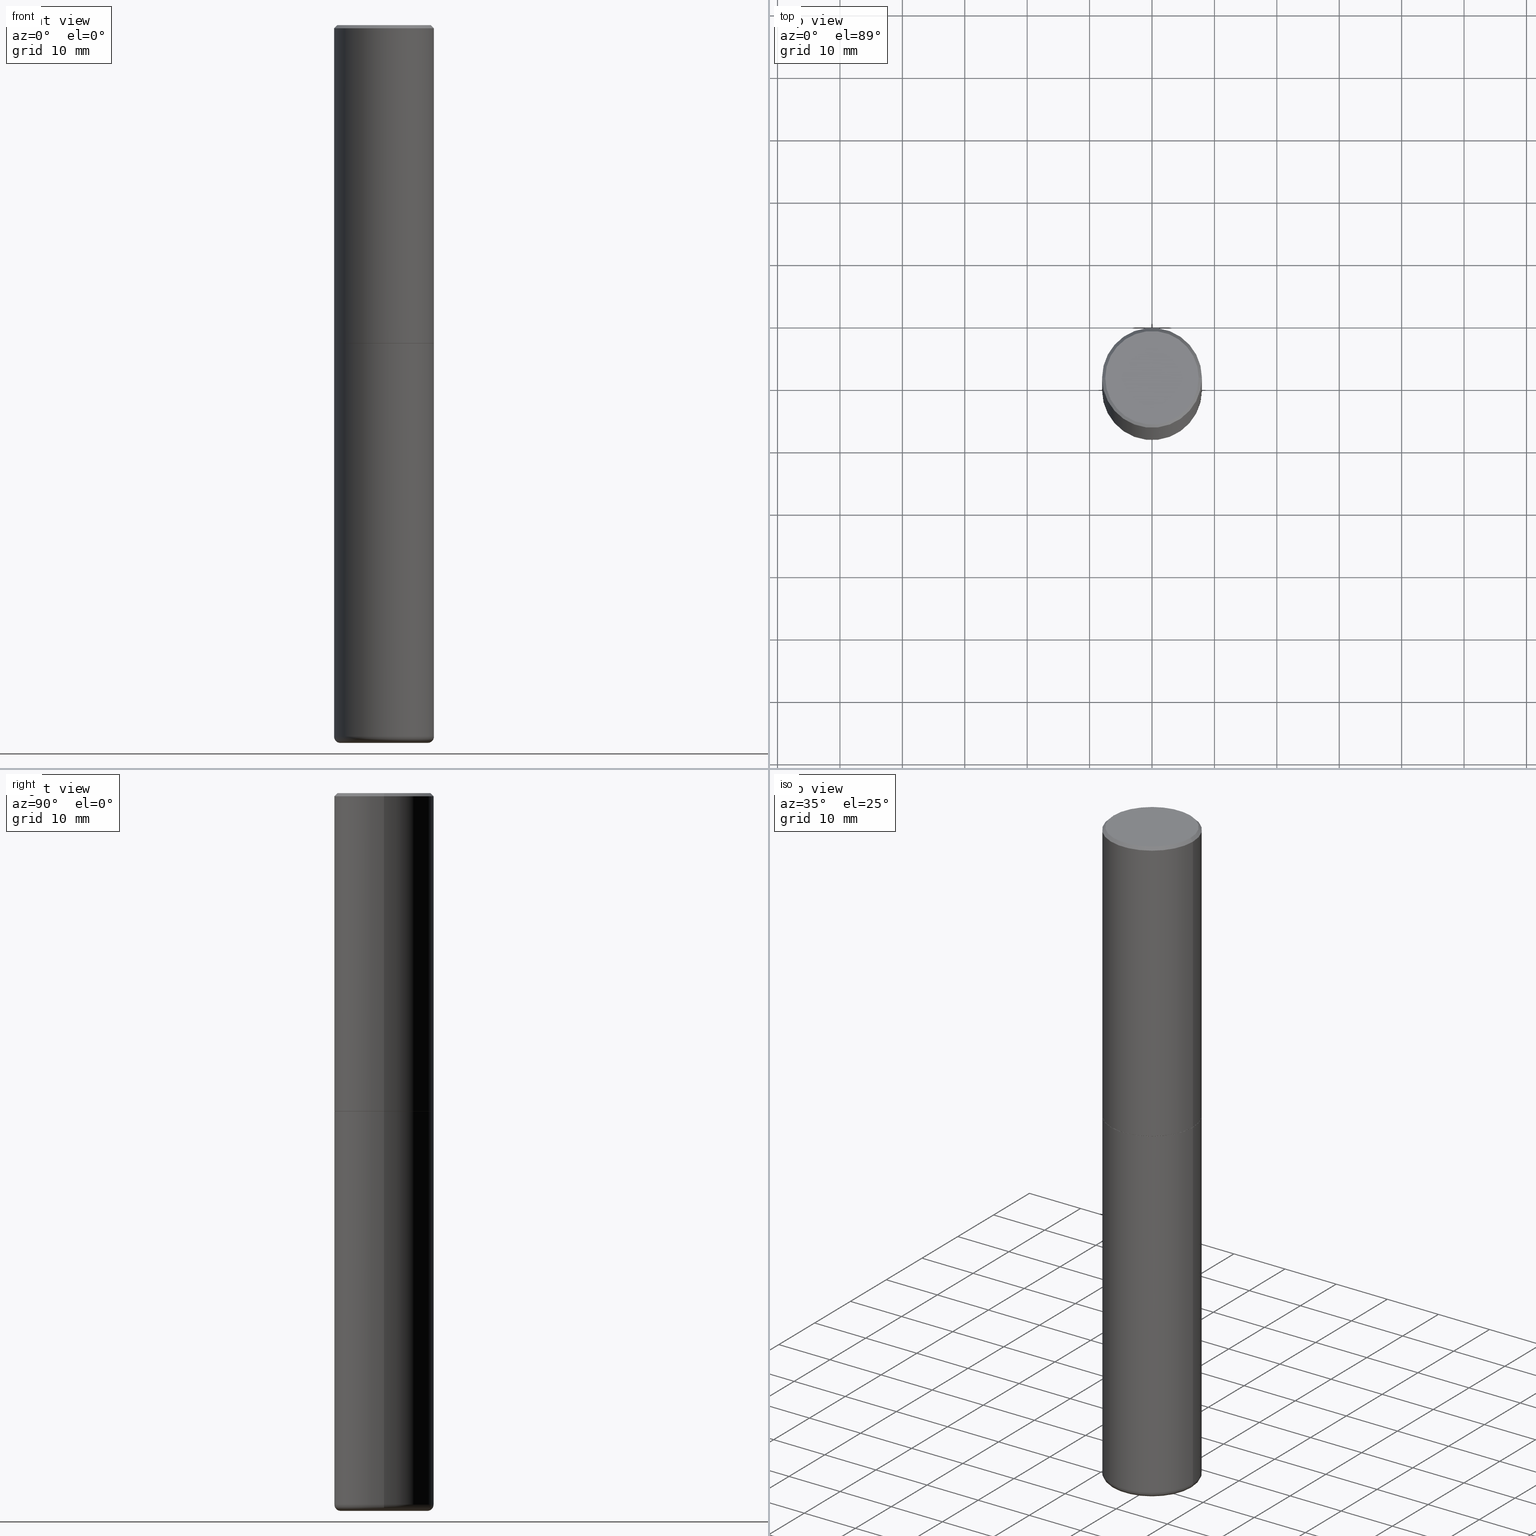
[diagram: canonical four-view strip — front | top / right | iso, engineering-drawing reading convention]
A machine part, canonical four-view strip (front | top / right | iso — engineering-drawing reading convention). The complete STEP part file that produces these views, byte-faithful:
ISO-10303-21;
HEADER;
FILE_DESCRIPTION (( 'STEP AP203' ),
    '1' );
FILE_NAME ('74780.STEP',
    '2024-05-02T19:17:57',
    ( '' ),
    ( '' ),
    'SwSTEP 2.0',
    'SolidWorks 2023',
    '' );
FILE_SCHEMA (( 'CONFIG_CONTROL_DESIGN' ));
ENDSEC;

DATA;
#1 = AXIS2_PLACEMENT_3D ( 'NONE', #334, #270, #20 ) ;
#2 = AXIS2_PLACEMENT_3D ( 'NONE', #32, #36, #152 ) ;
#3 = ORIENTED_EDGE ( 'NONE', *, *, #65, .T. ) ;
#4 = ORIENTED_EDGE ( 'NONE', *, *, #156, .F. ) ;
#5 = CLOSED_SHELL ( 'NONE', ( #328, #30, #109, #308, #198, #368, #324, #153 ) ) ;
#6 =( GEOMETRIC_REPRESENTATION_CONTEXT ( 3 ) GLOBAL_UNCERTAINTY_ASSIGNED_CONTEXT ( ( #377 ) ) GLOBAL_UNIT_ASSIGNED_CONTEXT ( ( #401, #351, #68 ) ) REPRESENTATION_CONTEXT ( 'NONE', 'WORKASPACE' ) );
#7 = EDGE_CURVE ( 'NONE', #359, #339, #26, .T. ) ;
#8 = CARTESIAN_POINT ( 'NONE',  ( 0.000000000000000000, 0.000000000000000000, 0.000000000000000000 ) ) ;
#9 = ORIENTED_EDGE ( 'NONE', *, *, #291, .F. ) ;
#10 = CARTESIAN_POINT ( 'NONE',  ( -0.3149499999999999522, 2.129454468560426178E-15, -0.02000000000000006981 ) ) ;
#11 = EDGE_CURVE ( 'NONE', #158, #89, #416, .T. ) ;
#12 = ORIENTED_EDGE ( 'NONE', *, *, #15, .F. ) ;
#13 = DIRECTION ( 'NONE',  ( 1.000000000000000000, -6.982962677686265922E-15, 4.874125435057325556E-29 ) ) ;
#14 = DIRECTION ( 'NONE',  ( -2.445468806185136597E-29, 3.491481338843145583E-15, 1.000000000000000000 ) ) ;
#15 = EDGE_CURVE ( 'NONE', #366, #396, #18, .T. ) ;
#16 = EDGE_LOOP ( 'NONE', ( #9, #369, #176, #54 ) ) ;
#17 = CARTESIAN_POINT ( 'NONE',  ( 0.2755500000000000171, -1.759462191083225139E-14, -4.488199999999999079 ) ) ;
#18 = CIRCLE ( 'NONE', #1, 0.03939999999999978936 ) ;
#19 = CONICAL_SURFACE ( 'NONE', #107, 0.3139500000000000068, 0.7853981633975507526 ) ;
#20 = DIRECTION ( 'NONE',  ( -1.000000000000000000, 7.105427357601014480E-15, 0.000000000000000000 ) ) ;
#21 = ORIENTED_EDGE ( 'NONE', *, *, #123, .T. ) ;
#22 = FACE_OUTER_BOUND ( 'NONE', #295, .T. ) ;
#23 = DIRECTION ( 'NONE',  ( 1.000000000000000000, -6.982962677686266711E-15, 4.876176775795936353E-29 ) ) ;
#24 = EDGE_LOOP ( 'NONE', ( #254, #357, #373, #268 ) ) ;
#25 = PERSON_AND_ORGANIZATION ( #71, #192 ) ;
#26 = CIRCLE ( 'NONE', #386, 0.3149499999999999522 ) ;
#27 = DIRECTION ( 'NONE',  ( 1.000000000000000000, -6.982962677686266711E-15, 0.000000000000000000 ) ) ;
#28 = APPROVAL_PERSON_ORGANIZATION ( #378, #122, #414 ) ;
#29 = COORDINATED_UNIVERSAL_TIME_OFFSET ( 5, 0, .BEHIND. ) ;
#30 = ADVANCED_FACE ( 'NONE', ( #365 ), #266, .T. ) ;
#31 = APPROVAL_DATE_TIME ( #215, #364 ) ;
#32 = CARTESIAN_POINT ( 'NONE',  ( 0.000000000000000000, 0.000000000000000000, 0.000000000000000000 ) ) ;
#33 = EDGE_CURVE ( 'NONE', #89, #158, #320, .T. ) ;
#34 = VECTOR ( 'NONE', #242, 39.37007874015748143 ) ;
#35 = PRODUCT_DEFINITION_FORMATION_WITH_SPECIFIED_SOURCE ( 'ANY', '', #409, .NOT_KNOWN. ) ;
#36 = DIRECTION ( 'NONE',  ( 0.000000000000000000, 0.000000000000000000, 1.000000000000000000 ) ) ;
#37 = CC_DESIGN_PERSON_AND_ORGANIZATION_ASSIGNMENT ( #247, #98, ( #409 ) ) ;
#38 = ORIENTED_EDGE ( 'NONE', *, *, #73, .F. ) ;
#39 = AXIS2_PLACEMENT_3D ( 'NONE', #17, #209, #344 ) ;
#40 = ORIENTED_EDGE ( 'NONE', *, *, #156, .T. ) ;
#41 = FACE_OUTER_BOUND ( 'NONE', #16, .T. ) ;
#42 = ORIENTED_EDGE ( 'NONE', *, *, #128, .F. ) ;
#43 = CIRCLE ( 'NONE', #371, 0.3149500000000000077 ) ;
#44 = APPROVAL_PERSON_ORGANIZATION ( #92, #335, #383 ) ;
#45 = DIRECTION ( 'NONE',  ( -2.445468806185136597E-29, 3.491481338843145583E-15, 1.000000000000000000 ) ) ;
#46 = EDGE_CURVE ( 'NONE', #332, #75, #130, .T. ) ;
#47 = DIRECTION ( 'NONE',  ( 1.000000000000000000, -6.982962677686267499E-15, 0.000000000000000000 ) ) ;
#48 = EDGE_LOOP ( 'NONE', ( #202, #262, #129, #127 ) ) ;
#49 = FACE_OUTER_BOUND ( 'NONE', #290, .T. ) ;
#50 = FACE_OUTER_BOUND ( 'NONE', #169, .T. ) ;
#51 = CIRCLE ( 'NONE', #79, 0.3149500000000000077 ) ;
#52 = AXIS2_PLACEMENT_3D ( 'NONE', #140, #86, #81 ) ;
#53 = CARTESIAN_POINT ( 'NONE',  ( 4.910256815939135870E-29, -7.010545380263151710E-15, -2.007899999999999796 ) ) ;
#54 = ORIENTED_EDGE ( 'NONE', *, *, #154, .F. ) ;
#55 = CARTESIAN_POINT ( 'NONE',  ( -0.3149500000000000077, -9.102651616353041816E-15, -2.007899999999999796 ) ) ;
#56 = DIRECTION ( 'NONE',  ( 1.000000000000000000, -6.982962677686268288E-15, 0.000000000000000000 ) ) ;
#57 = ORIENTED_EDGE ( 'NONE', *, *, #58, .F. ) ;
#58 = EDGE_CURVE ( 'NONE', #326, #287, #222, .T. ) ;
#59 = CARTESIAN_POINT ( 'NONE',  ( 2.059624841783562486E-15, 0.2949499999999997679, -9.380394023546260134E-16 ) ) ;
#60 = PERSON_AND_ORGANIZATION ( #71, #192 ) ;
#61 = VECTOR ( 'NONE', #97, 39.37007874015748143 ) ;
#62 = CARTESIAN_POINT ( 'NONE',  ( 0.3149500000000000077, -2.199284095337289871E-15, 1.535751875536930130E-29 ) ) ;
#63 = APPROVAL_STATUS ( 'not_yet_approved' ) ;
#64 = DIRECTION ( 'NONE',  ( -2.445468806185136597E-29, 3.491481338843145583E-15, 1.000000000000000000 ) ) ;
#65 = EDGE_CURVE ( 'NONE', #158, #359, #296, .T. ) ;
#66 = PERSON_AND_ORGANIZATION_ROLE ( 'classification_officer' ) ;
#67 = PLANE ( 'NONE',  #101 ) ;
#68 =( NAMED_UNIT ( * ) SI_UNIT ( $, .STERADIAN. ) SOLID_ANGLE_UNIT ( ) );
#69 = CC_DESIGN_DATE_AND_TIME_ASSIGNMENT ( #212, #250, ( #77 ) ) ;
#70 = CIRCLE ( 'NONE', #294, 0.3149500000000000077 ) ;
#71 = PERSON ( 'UNSPECIFIED', 'UNSPECIFIED', 'UNSPECIFIED', ('UNSPECIFIED'), ('UNSPECIFIED'), ('UNSPECIFIED') ) ;
#72 = ORIENTED_EDGE ( 'NONE', *, *, #394, .T. ) ;
#73 = EDGE_CURVE ( 'NONE', #396, #287, #338, .T. ) ;
#74 = CC_DESIGN_APPROVAL ( #122, ( #279 ) ) ;
#75 = VERTEX_POINT ( 'NONE', #395 ) ;
#76 = ORIENTED_EDGE ( 'NONE', *, *, #283, .F. ) ;
#77 = PRODUCT_DEFINITION ( 'UNKNOWN', '', #35, #237 ) ;
#78 = PLANE ( 'NONE',  #124 ) ;
#79 = AXIS2_PLACEMENT_3D ( 'NONE', #119, #64, #211 ) ;
#80 = AXIS2_PLACEMENT_3D ( 'NONE', #53, #172, #189 ) ;
#81 = DIRECTION ( 'NONE',  ( 1.000000000000000000, -6.982962677686261977E-15, 4.883557194083111219E-29 ) ) ;
#82 = DIRECTION ( 'NONE',  ( -2.445468806185136597E-29, 3.491481338843145583E-15, 1.000000000000000000 ) ) ;
#83 = DIRECTION ( 'NONE',  ( 2.438088387897960049E-29, -3.491481338843145188E-15, -1.000000000000000000 ) ) ;
#84 = DIRECTION ( 'NONE',  ( -2.445468806185136597E-29, 3.491481338843145583E-15, 1.000000000000000000 ) ) ;
#85 = VERTEX_POINT ( 'NONE', #226 ) ;
#86 = DIRECTION ( 'NONE',  ( -2.445468806185136597E-29, 3.491481338843145583E-15, 1.000000000000000000 ) ) ;
#87 = CARTESIAN_POINT ( 'NONE',  ( 0.3149499999999998967, -1.786975064033308982E-14, -4.488199999999999079 ) ) ;
#88 = EDGE_CURVE ( 'NONE', #75, #339, #132, .T. ) ;
#89 = VERTEX_POINT ( 'NONE', #195 ) ;
#90 = CARTESIAN_POINT ( 'NONE',  ( 4.910256815939135870E-29, -7.010545380263151710E-15, -2.007899999999999796 ) ) ;
#91 = APPROVAL_DATE_TIME ( #147, #335 ) ;
#92 = PERSON_AND_ORGANIZATION ( #71, #192 ) ;
#93 = ADVANCED_FACE ( 'NONE', ( #273 ), #408, .T. ) ;
#94 = AXIS2_PLACEMENT_3D ( 'NONE', #8, #82, #403 ) ;
#95 = DIRECTION ( 'NONE',  ( -2.445468806185136597E-29, 3.491481338843145583E-15, 1.000000000000000000 ) ) ;
#96 = SHAPE_DEFINITION_REPRESENTATION ( #260, #288 ) ;
#97 = DIRECTION ( 'NONE',  ( 0.7071067811866199593, -2.468850131083015945E-15, 0.7071067811864750752 ) ) ;
#98 = PERSON_AND_ORGANIZATION_ROLE ( 'design_owner' ) ;
#99 = CIRCLE ( 'NONE', #160, 0.2755500000000000171 ) ;
#100 = ADVANCED_FACE ( 'NONE', ( #22 ), #136, .T. ) ;
#101 = AXIS2_PLACEMENT_3D ( 'NONE', #59, #350, #184 ) ;
#102 = APPROVAL_PERSON_ORGANIZATION ( #177, #364, #349 ) ;
#103 = EDGE_LOOP ( 'NONE', ( #111, #3, #162, #387 ) ) ;
#104 = ORIENTED_EDGE ( 'NONE', *, *, #46, .T. ) ;
#105 = CARTESIAN_POINT ( 'NONE',  ( 0.000000000000000000, 0.000000000000000000, 0.000000000000000000 ) ) ;
#106 = CONICAL_SURFACE ( 'NONE', #347, 0.3139500000000000068, 0.7853981633975507526 ) ;
#107 = AXIS2_PLACEMENT_3D ( 'NONE', #404, #239, #197 ) ;
#108 = DIRECTION ( 'NONE',  ( 2.438088387897960049E-29, -3.491481338843145188E-15, -1.000000000000000000 ) ) ;
#109 = ADVANCED_FACE ( 'NONE', ( #41 ), #205, .T. ) ;
#110 = DIRECTION ( 'NONE',  ( 0.7071067811865465735, -7.319954787623252890E-15, -0.7071067811865484609 ) ) ;
#111 = ORIENTED_EDGE ( 'NONE', *, *, #33, .T. ) ;
#112 = CARTESIAN_POINT ( 'NONE',  ( -4.488561081641444621E-45, 6.408475632635922878E-31, 1.835460370743176819E-16 ) ) ;
#113 = EDGE_CURVE ( 'NONE', #114, #85, #248, .T. ) ;
#114 = VERTEX_POINT ( 'NONE', #372 ) ;
#115 = CYLINDRICAL_SURFACE ( 'NONE', #186, 0.3149500000000000077 ) ;
#116 = AXIS2_PLACEMENT_3D ( 'NONE', #112, #297, #13 ) ;
#117 = COORDINATED_UNIVERSAL_TIME_OFFSET ( 5, 0, .BEHIND. ) ;
#118 = DIRECTION ( 'NONE',  ( -2.445468806185136597E-29, 3.491481338843145583E-15, 1.000000000000000000 ) ) ;
#119 = CARTESIAN_POINT ( 'NONE',  ( 1.097575309592012950E-28, -1.567046654499580152E-14, -4.488199999999999079 ) ) ;
#120 = CARTESIAN_POINT ( 'NONE',  ( 0.000000000000000000, 0.000000000000000000, 0.000000000000000000 ) ) ;
#121 = CALENDAR_DATE ( 2024, 2, 5 ) ;
#122 = APPROVAL ( #281, 'UNSPECIFIED' ) ;
#123 = EDGE_CURVE ( 'NONE', #221, #396, #51, .T. ) ;
#124 = AXIS2_PLACEMENT_3D ( 'NONE', #234, #174, #370 ) ;
#125 = VECTOR ( 'NONE', #384, 39.37007874015748143 ) ;
#126 = ORIENTED_EDGE ( 'NONE', *, *, #131, .F. ) ;
#127 = ORIENTED_EDGE ( 'NONE', *, *, #11, .F. ) ;
#128 = EDGE_CURVE ( 'NONE', #221, #326, #181, .T. ) ;
#129 = ORIENTED_EDGE ( 'NONE', *, *, #137, .T. ) ;
#130 = CIRCLE ( 'NONE', #228, 0.2949499999999997679 ) ;
#131 = EDGE_CURVE ( 'NONE', #366, #325, #99, .T. ) ;
#132 = LINE ( 'NONE', #302, #402 ) ;
#133 = PLANE ( 'NONE',  #191 ) ;
#134 = EDGE_LOOP ( 'NONE', ( #104, #238 ) ) ;
#135 = CARTESIAN_POINT ( 'NONE',  ( 0.2755500000000000171, -1.773218627558267376E-14, -4.527599999999998737 ) ) ;
#136 = TOROIDAL_SURFACE ( 'NONE', #353, 0.2755500000000000171, 0.03939999999999978936 ) ;
#137 = EDGE_CURVE ( 'NONE', #85, #89, #382, .T. ) ;
#138 = DIRECTION ( 'NONE',  ( 1.000000000000000000, -6.982962677686267499E-15, 0.000000000000000000 ) ) ;
#139 = EDGE_LOOP ( 'NONE', ( #40, #72, #208, #299 ) ) ;
#140 = CARTESIAN_POINT ( 'NONE',  ( 1.097575309592012950E-28, -1.567046654499580152E-14, -4.488199999999999079 ) ) ;
#141 = CARTESIAN_POINT ( 'NONE',  ( 0.000000000000000000, 0.000000000000000000, 0.000000000000000000 ) ) ;
#142 = DIRECTION ( 'NONE',  ( -2.445468806185136597E-29, 3.491481338843145583E-15, 1.000000000000000000 ) ) ;
#143 = FACE_OUTER_BOUND ( 'NONE', #48, .T. ) ;
#144 = DIRECTION ( 'NONE',  ( -0.7071067811865465735, 2.468850131082246805E-15, -0.7071067811865484609 ) ) ;
#145 = PERSON_AND_ORGANIZATION_ROLE ( 'design_supplier' ) ;
#146 = LOCAL_TIME ( 15, 17, 57.00000000000000000, #29 ) ;
#147 = DATE_AND_TIME ( #313, #161 ) ;
#148 = CARTESIAN_POINT ( 'NONE',  ( 1.107210456688382074E-28, -1.580803090974622074E-14, -4.527599999999998737 ) ) ;
#149 = MECHANICAL_CONTEXT ( 'NONE', #292, 'mechanical' ) ;
#150 = CIRCLE ( 'NONE', #252, 0.2755500000000000171 ) ;
#151 = DIRECTION ( 'NONE',  ( 1.000000000000000000, -6.982962677686266711E-15, 0.000000000000000000 ) ) ;
#152 = DIRECTION ( 'NONE',  ( 1.000000000000000000, 0.000000000000000000, 0.000000000000000000 ) ) ;
#153 = ADVANCED_FACE ( 'NONE', ( #415 ), #67, .F. ) ;
#154 = EDGE_CURVE ( 'NONE', #332, #359, #175, .T. ) ;
#155 = ORIENTED_EDGE ( 'NONE', *, *, #283, .T. ) ;
#156 = EDGE_CURVE ( 'NONE', #85, #114, #240, .T. ) ;
#157 = ORIENTED_EDGE ( 'NONE', *, *, #224, .F. ) ;
#158 = VERTEX_POINT ( 'NONE', #413 ) ;
#159 = CARTESIAN_POINT ( 'NONE',  ( 4.907811347132950267E-29, -7.007053898924307914E-15, -2.006899999999999906 ) ) ;
#160 = AXIS2_PLACEMENT_3D ( 'NONE', #245, #341, #56 ) ;
#161 = LOCAL_TIME ( 15, 17, 57.00000000000000000, #411 ) ;
#162 = ORIENTED_EDGE ( 'NONE', *, *, #385, .F. ) ;
#163 = DIRECTION ( 'NONE',  ( 1.000000000000000000, -6.982962677686266711E-15, 0.000000000000000000 ) ) ;
#164 = DIRECTION ( 'NONE',  ( -2.445468806185136877E-29, 3.491481338843145188E-15, 1.000000000000000000 ) ) ;
#165 = FACE_OUTER_BOUND ( 'NONE', #188, .T. ) ;
#166 = CARTESIAN_POINT ( 'NONE',  ( 4.910256815939135870E-29, -7.010545380263151710E-15, -2.007899999999999796 ) ) ;
#167 = EDGE_LOOP ( 'NONE', ( #259, #187, #399, #271 ) ) ;
#168 = CARTESIAN_POINT ( 'NONE',  ( 4.890937612370289799E-31, -6.982962677686315028E-17, -0.02000000000000006981 ) ) ;
#169 = EDGE_LOOP ( 'NONE', ( #230, #223 ) ) ;
#170 = CARTESIAN_POINT ( 'NONE',  ( 4.910256815939135870E-29, -7.010545380263151710E-15, -2.007899999999999796 ) ) ;
#171 = VECTOR ( 'NONE', #405, 39.37007874015748143 ) ;
#172 = DIRECTION ( 'NONE',  ( -2.445468806185136597E-29, 3.491481338843145583E-15, 1.000000000000000000 ) ) ;
#173 = ORIENTED_EDGE ( 'NONE', *, *, #73, .T. ) ;
#174 = DIRECTION ( 'NONE',  ( -2.438088387897960049E-29, 3.491481338843145188E-15, 1.000000000000000000 ) ) ;
#175 = LINE ( 'NONE', #276, #301 ) ;
#176 = ORIENTED_EDGE ( 'NONE', *, *, #385, .T. ) ;
#177 = PERSON_AND_ORGANIZATION ( #71, #192 ) ;
#178 = DIRECTION ( 'NONE',  ( -1.000000000000000000, 6.982962677686265922E-15, -4.876176775795935793E-29 ) ) ;
#179 = CARTESIAN_POINT ( 'NONE',  ( 4.910256815939135870E-29, -7.010545380263151710E-15, -2.007899999999999796 ) ) ;
#180 = LOCAL_TIME ( 15, 17, 57.00000000000000000, #284 ) ;
#181 = LINE ( 'NONE', #62, #34 ) ;
#182 = COORDINATED_UNIVERSAL_TIME_OFFSET ( 5, 0, .BEHIND. ) ;
#183 = DATE_AND_TIME ( #244, #321 ) ;
#184 = DIRECTION ( 'NONE',  ( -1.000000000000000000, 6.982962677686265922E-15, -4.876176775795935793E-29 ) ) ;
#185 = AXIS2_PLACEMENT_3D ( 'NONE', #159, #190, #138 ) ;
#186 = AXIS2_PLACEMENT_3D ( 'NONE', #105, #45, #23 ) ;
#187 = ORIENTED_EDGE ( 'NONE', *, *, #15, .T. ) ;
#188 = EDGE_LOOP ( 'NONE', ( #4, #193 ) ) ;
#189 = DIRECTION ( 'NONE',  ( 1.000000000000000000, -6.982962677686263555E-15, 0.000000000000000000 ) ) ;
#190 = DIRECTION ( 'NONE',  ( -2.445468806185136597E-29, 3.491481338843145583E-15, 1.000000000000000000 ) ) ;
#191 = AXIS2_PLACEMENT_3D ( 'NONE', #170, #83, #360 ) ;
#192 = ORGANIZATION ( 'UNSPECIFIED', 'UNSPECIFIED', '' ) ;
#193 = ORIENTED_EDGE ( 'NONE', *, *, #113, .F. ) ;
#194 = PRODUCT_RELATED_PRODUCT_CATEGORY ( 'detail', '', ( #409 ) ) ;
#195 = CARTESIAN_POINT ( 'NONE',  ( 0.3149500000000002853, -9.206337994261599363E-15, -2.006899999999999906 ) ) ;
#196 = EDGE_LOOP ( 'NONE', ( #391, #219, #293, #235 ) ) ;
#197 = DIRECTION ( 'NONE',  ( 1.000000000000000000, -6.982962677686266711E-15, 0.000000000000000000 ) ) ;
#198 = ADVANCED_FACE ( 'NONE', ( #319 ), #280, .T. ) ;
#199 = DIRECTION ( 'NONE',  ( 1.000000000000000000, -6.982962677686266711E-15, 4.876176775795936353E-29 ) ) ;
#200 = DIRECTION ( 'NONE',  ( -2.445468806185136597E-29, 3.491481338843145583E-15, 1.000000000000000000 ) ) ;
#201 = CARTESIAN_POINT ( 'NONE',  ( -4.488561081641444621E-45, 6.408475632635922878E-31, 1.835460370743176819E-16 ) ) ;
#202 = ORIENTED_EDGE ( 'NONE', *, *, #394, .F. ) ;
#203 = DIRECTION ( 'NONE',  ( 1.000000000000000000, -6.982962677686269866E-15, 0.000000000000000000 ) ) ;
#204 = CC_DESIGN_PERSON_AND_ORGANIZATION_ASSIGNMENT ( #412, #66, ( #279 ) ) ;
#205 = CONICAL_SURFACE ( 'NONE', #380, 0.3149499999999999522, 0.7853981633974469467 ) ;
#206 = AXIS2_PLACEMENT_3D ( 'NONE', #333, #374, #163 ) ;
#207 = LINE ( 'NONE', #300, #285 ) ;
#208 = ORIENTED_EDGE ( 'NONE', *, *, #33, .F. ) ;
#209 = DIRECTION ( 'NONE',  ( -6.982962677686266711E-15, -1.000000000000000000, 3.491481338843145583E-15 ) ) ;
#210 = PERSON_AND_ORGANIZATION ( #71, #192 ) ;
#211 = DIRECTION ( 'NONE',  ( 1.000000000000000000, -6.982962677686269866E-15, 0.000000000000000000 ) ) ;
#212 = DATE_AND_TIME ( #121, #146 ) ;
#213 = DIRECTION ( 'NONE',  ( 1.000000000000000000, -6.982962677686268288E-15, 0.000000000000000000 ) ) ;
#214 = APPLICATION_PROTOCOL_DEFINITION ( 'international standard', 'config_control_design', 1994, #390 ) ;
#215 = DATE_AND_TIME ( #418, #180 ) ;
#216 = CC_DESIGN_PERSON_AND_ORGANIZATION_ASSIGNMENT ( #25, #145, ( #35 ) ) ;
#217 = AXIS2_PLACEMENT_3D ( 'NONE', #141, #14, #199 ) ;
#218 = CC_DESIGN_APPROVAL ( #335, ( #35 ) ) ;
#219 = ORIENTED_EDGE ( 'NONE', *, *, #11, .T. ) ;
#220 = ORIENTED_EDGE ( 'NONE', *, *, #232, .F. ) ;
#221 = VERTEX_POINT ( 'NONE', #87 ) ;
#222 = CIRCLE ( 'NONE', #80, 0.3149500000000000077 ) ;
#223 = ORIENTED_EDGE ( 'NONE', *, *, #224, .T. ) ;
#224 = EDGE_CURVE ( 'NONE', #287, #326, #43, .T. ) ;
#225 = CARTESIAN_POINT ( 'NONE',  ( 1.097575309592012950E-28, -1.567046654499580152E-14, -4.488199999999999079 ) ) ;
#226 = CARTESIAN_POINT ( 'NONE',  ( 0.3139500000000000068, -9.202846512922754778E-15, -2.007899999999999796 ) ) ;
#227 = DIRECTION ( 'NONE',  ( -2.445468806185136597E-29, 3.491481338843145583E-15, 1.000000000000000000 ) ) ;
#228 = AXIS2_PLACEMENT_3D ( 'NONE', #201, #84, #233 ) ;
#229 = DIRECTION ( 'NONE',  ( -1.000000000000000000, 6.982962677686266711E-15, 0.000000000000000000 ) ) ;
#230 = ORIENTED_EDGE ( 'NONE', *, *, #58, .T. ) ;
#231 = FACE_OUTER_BOUND ( 'NONE', #167, .T. ) ;
#232 = EDGE_CURVE ( 'NONE', #325, #366, #150, .T. ) ;
#233 = DIRECTION ( 'NONE',  ( 1.000000000000000000, -6.982962677686265922E-15, 4.874125435057325556E-29 ) ) ;
#234 = CARTESIAN_POINT ( 'NONE',  ( 4.910256815939135870E-29, -7.010545380263151710E-15, -2.007899999999999796 ) ) ;
#235 = ORIENTED_EDGE ( 'NONE', *, *, #7, .F. ) ;
#236 = CARTESIAN_POINT ( 'NONE',  ( -0.2949499999999997679, 2.094539655171994924E-15, 1.835460370743031619E-16 ) ) ;
#237 = DESIGN_CONTEXT ( 'detailed design', #390, 'design' ) ;
#238 = ORIENTED_EDGE ( 'NONE', *, *, #291, .T. ) ;
#239 = DIRECTION ( 'NONE',  ( -2.445468806185136597E-29, 3.491481338843145583E-15, 1.000000000000000000 ) ) ;
#240 = CIRCLE ( 'NONE', #257, 0.3139500000000000068 ) ;
#241 = PERSON_AND_ORGANIZATION_ROLE ( 'creator' ) ;
#242 = DIRECTION ( 'NONE',  ( -2.445468806185136877E-29, 3.491481338843145188E-15, 1.000000000000000000 ) ) ;
#243 = EDGE_CURVE ( 'NONE', #89, #339, #207, .T. ) ;
#244 = CALENDAR_DATE ( 2024, 2, 5 ) ;
#245 = CARTESIAN_POINT ( 'NONE',  ( 1.107210456688382074E-28, -1.580803090974622074E-14, -4.527599999999998737 ) ) ;
#246 = CARTESIAN_POINT ( 'NONE',  ( -0.3139500000000000068, -4.779796461344316734E-15, -2.007899999999999796 ) ) ;
#247 = PERSON_AND_ORGANIZATION ( #71, #192 ) ;
#248 = CIRCLE ( 'NONE', #362, 0.3139500000000000068 ) ;
#249 = DIRECTION ( 'NONE',  ( 1.000000000000000000, -6.982962677686263555E-15, 0.000000000000000000 ) ) ;
#250 = DATE_TIME_ROLE ( 'creation_date' ) ;
#251 = AXIS2_PLACEMENT_3D ( 'NONE', #410, #255, #47 ) ;
#252 = AXIS2_PLACEMENT_3D ( 'NONE', #148, #317, #213 ) ;
#253 = MANIFOLD_SOLID_BREP ( 'Body-Move/Copy2[2]', #5 ) ;
#254 = ORIENTED_EDGE ( 'NONE', *, *, #88, .F. ) ;
#255 = DIRECTION ( 'NONE',  ( -2.445468806185136597E-29, 3.491481338843145583E-15, 1.000000000000000000 ) ) ;
#256 = MANIFOLD_SOLID_BREP ( 'Body-Move/Copy2[1]', #361 ) ;
#257 = AXIS2_PLACEMENT_3D ( 'NONE', #179, #95, #27 ) ;
#258 = LOCAL_TIME ( 15, 17, 57.00000000000000000, #182 ) ;
#259 = ORIENTED_EDGE ( 'NONE', *, *, #232, .T. ) ;
#260 = PRODUCT_DEFINITION_SHAPE ( 'NONE', 'NONE',  #77 ) ;
#261 = CC_DESIGN_DATE_AND_TIME_ASSIGNMENT ( #183, #348, ( #279 ) ) ;
#262 = ORIENTED_EDGE ( 'NONE', *, *, #113, .T. ) ;
#263 = PLANE ( 'NONE',  #393 ) ;
#264 = CARTESIAN_POINT ( 'NONE',  ( 4.890937612370289799E-31, -6.982962677686315028E-17, -0.02000000000000006981 ) ) ;
#265 = CARTESIAN_POINT ( 'NONE',  ( 1.097575309592012950E-28, -1.567046654499580152E-14, -4.488199999999999079 ) ) ;
#266 = CYLINDRICAL_SURFACE ( 'NONE', #94, 0.3149500000000001743 ) ;
#267 = CIRCLE ( 'NONE', #206, 0.3149499999999999522 ) ;
#268 = ORIENTED_EDGE ( 'NONE', *, *, #7, .T. ) ;
#269 = CARTESIAN_POINT ( 'NONE',  ( 1.734104124256122727E-28, -6.830556784459108932E-15, -4.527599999999998737 ) ) ;
#270 = DIRECTION ( 'NONE',  ( 7.105427357601001859E-15, 1.000000000000000000, -3.491481338843145583E-15 ) ) ;
#271 = ORIENTED_EDGE ( 'NONE', *, *, #354, .F. ) ;
#272 = DIRECTION ( 'NONE',  ( 2.445468806185136597E-29, -3.491481338843145583E-15, -1.000000000000000000 ) ) ;
#273 = FACE_OUTER_BOUND ( 'NONE', #289, .T. ) ;
#274 = DIRECTION ( 'NONE',  ( 1.000000000000000000, -6.982962677686266711E-15, 0.000000000000000000 ) ) ;
#275 = FACE_OUTER_BOUND ( 'NONE', #139, .T. ) ;
#276 = CARTESIAN_POINT ( 'NONE',  ( -0.3149499999999999522, 2.129454468560426178E-15, -0.02000000000000006981 ) ) ;
#277 = AXIS2_PLACEMENT_3D ( 'NONE', #168, #272, #367 ) ;
#278 = SECURITY_CLASSIFICATION_LEVEL ( 'unclassified' ) ;
#279 = SECURITY_CLASSIFICATION ( '', '', #278 ) ;
#280 = CYLINDRICAL_SURFACE ( 'NONE', #312, 0.3149500000000001743 ) ;
#281 = APPROVAL_STATUS ( 'not_yet_approved' ) ;
#282 = APPROVAL_DATE_TIME ( #381, #122 ) ;
#283 = EDGE_CURVE ( 'NONE', #396, #221, #70, .T. ) ;
#284 = COORDINATED_UNIVERSAL_TIME_OFFSET ( 5, 0, .BEHIND. ) ;
#285 = VECTOR ( 'NONE', #340, 39.37007874015748143 ) ;
#286 = LENGTH_MEASURE_WITH_UNIT ( LENGTH_MEASURE( 0.02539999999999999897 ), #388 );
#287 = VERTEX_POINT ( 'NONE', #55 ) ;
#288 = ADVANCED_BREP_SHAPE_REPRESENTATION ( '74780', ( #256, #253, #2 ), #6 ) ;
#289 = EDGE_LOOP ( 'NONE', ( #21, #173, #57, #42 ) ) ;
#290 = EDGE_LOOP ( 'NONE', ( #220, #126 ) ) ;
#291 = EDGE_CURVE ( 'NONE', #75, #332, #392, .T. ) ;
#292 = APPLICATION_CONTEXT ( 'configuration controlled 3d designs of mechanical parts and assemblies' ) ;
#293 = ORIENTED_EDGE ( 'NONE', *, *, #243, .T. ) ;
#294 = AXIS2_PLACEMENT_3D ( 'NONE', #265, #227, #203 ) ;
#295 = EDGE_LOOP ( 'NONE', ( #12, #406, #309, #76 ) ) ;
#296 = LINE ( 'NONE', #363, #171 ) ;
#297 = DIRECTION ( 'NONE',  ( -2.445468806185136597E-29, 3.491481338843145583E-15, 1.000000000000000000 ) ) ;
#298 = DIRECTION ( 'NONE',  ( -2.445468806185136597E-29, 3.491481338843145583E-15, 1.000000000000000000 ) ) ;
#299 = ORIENTED_EDGE ( 'NONE', *, *, #137, .F. ) ;
#300 = CARTESIAN_POINT ( 'NONE',  ( 0.3149500000000001743, -2.199284095337290660E-15, 1.535751875536930690E-29 ) ) ;
#301 = VECTOR ( 'NONE', #144, 39.37007874015748143 ) ;
#302 = CARTESIAN_POINT ( 'NONE',  ( 0.3149499999999999522, -2.230543471175006661E-15, -0.02000000000000006981 ) ) ;
#303 = CC_DESIGN_APPROVAL ( #364, ( #77 ) ) ;
#304 = DIRECTION ( 'NONE',  ( 1.000000000000000000, -6.982962677686266711E-15, 0.000000000000000000 ) ) ;
#305 = CARTESIAN_POINT ( 'NONE',  ( -0.3149500000000000077, 2.237854346276435590E-15, -1.549218606675782676E-29 ) ) ;
#306 = CARTESIAN_POINT ( 'NONE',  ( 4.890937612370289799E-31, -6.982962677686315028E-17, -0.02000000000000006981 ) ) ;
#307 = CARTESIAN_POINT ( 'NONE',  ( -0.2755500000000000171, -1.364137130003931682E-14, -4.527599999999998737 ) ) ;
#308 = ADVANCED_FACE ( 'NONE', ( #336 ), #329, .T. ) ;
#309 = ORIENTED_EDGE ( 'NONE', *, *, #354, .T. ) ;
#310 = PERSON_AND_ORGANIZATION_ROLE ( 'creator' ) ;
#311 = LINE ( 'NONE', #246, #125 ) ;
#312 = AXIS2_PLACEMENT_3D ( 'NONE', #120, #118, #379 ) ;
#313 = CALENDAR_DATE ( 2024, 2, 5 ) ;
#314 = DIRECTION ( 'NONE',  ( -2.445468806185136597E-29, 3.491481338843145583E-15, 1.000000000000000000 ) ) ;
#315 = ADVANCED_FACE ( 'NONE', ( #50 ), #133, .F. ) ;
#316 = CALENDAR_DATE ( 2024, 2, 5 ) ;
#317 = DIRECTION ( 'NONE',  ( -2.445468806185136597E-29, 3.491481338843145583E-15, 1.000000000000000000 ) ) ;
#318 = APPROVAL_STATUS ( 'not_yet_approved' ) ;
#319 = FACE_OUTER_BOUND ( 'NONE', #196, .T. ) ;
#320 = CIRCLE ( 'NONE', #185, 0.3149500000000002853 ) ;
#321 = LOCAL_TIME ( 15, 17, 57.00000000000000000, #117 ) ;
#322 = VECTOR ( 'NONE', #164, 39.37007874015748143 ) ;
#323 = TOROIDAL_SURFACE ( 'NONE', #52, 0.2755500000000000171, 0.03939999999999978936 ) ;
#324 = ADVANCED_FACE ( 'NONE', ( #165 ), #78, .F. ) ;
#325 = VERTEX_POINT ( 'NONE', #135 ) ;
#326 = VERTEX_POINT ( 'NONE', #397 ) ;
#327 = DIRECTION ( 'NONE',  ( -2.445468806185136597E-29, 3.491481338843145583E-15, 1.000000000000000000 ) ) ;
#328 = ADVANCED_FACE ( 'NONE', ( #275 ), #106, .T. ) ;
#329 = CONICAL_SURFACE ( 'NONE', #277, 0.3149499999999999522, 0.7853981633974469467 ) ;
#330 = DIRECTION ( 'NONE',  ( 1.000000000000000000, -6.982962677686261977E-15, 4.883557194083111219E-29 ) ) ;
#331 = CARTESIAN_POINT ( 'NONE',  ( 0.3149499999999999522, -2.230543471175006661E-15, -0.02000000000000006981 ) ) ;
#332 = VERTEX_POINT ( 'NONE', #236 ) ;
#333 = CARTESIAN_POINT ( 'NONE',  ( 4.890937612370289799E-31, -6.982962677686315028E-17, -0.02000000000000006981 ) ) ;
#334 = CARTESIAN_POINT ( 'NONE',  ( -0.2755500000000000171, -1.371256603660884731E-14, -4.488199999999999079 ) ) ;
#335 = APPROVAL ( #63, 'UNSPECIFIED' ) ;
#336 = FACE_OUTER_BOUND ( 'NONE', #24, .T. ) ;
#337 = DIMENSIONAL_EXPONENTS ( 1.000000000000000000, 0.000000000000000000, 0.000000000000000000, 0.000000000000000000, 0.000000000000000000, 0.000000000000000000, 0.000000000000000000 ) ;
#338 = LINE ( 'NONE', #305, #322 ) ;
#339 = VERTEX_POINT ( 'NONE', #331 ) ;
#340 = DIRECTION ( 'NONE',  ( -2.445468806185136877E-29, 3.491481338843145188E-15, 1.000000000000000000 ) ) ;
#341 = DIRECTION ( 'NONE',  ( -2.445468806185136597E-29, 3.491481338843145583E-15, 1.000000000000000000 ) ) ;
#342 = ADVANCED_FACE ( 'NONE', ( #407 ), #115, .T. ) ;
#343 = ORIENTED_EDGE ( 'NONE', *, *, #128, .T. ) ;
#344 = DIRECTION ( 'NONE',  ( 1.000000000000000000, -6.982962677686266711E-15, 0.000000000000000000 ) ) ;
#345 = CC_DESIGN_PERSON_AND_ORGANIZATION_ASSIGNMENT ( #60, #241, ( #77 ) ) ;
#346 = CARTESIAN_POINT ( 'NONE',  ( 4.910256815939135870E-29, -7.010545380263151710E-15, -2.007899999999999796 ) ) ;
#347 = AXIS2_PLACEMENT_3D ( 'NONE', #90, #200, #304 ) ;
#348 = DATE_TIME_ROLE ( 'classification_date' ) ;
#349 = APPROVAL_ROLE ( '' ) ;
#350 = DIRECTION ( 'NONE',  ( 2.438088387897960049E-29, -3.491481338843145188E-15, -1.000000000000000000 ) ) ;
#351 =( NAMED_UNIT ( * ) PLANE_ANGLE_UNIT ( ) SI_UNIT ( $, .RADIAN. ) );
#352 = CARTESIAN_POINT ( 'NONE',  ( -0.3149499999999998967, -1.343261219871936712E-14, -4.488199999999999079 ) ) ;
#353 = AXIS2_PLACEMENT_3D ( 'NONE', #225, #327, #330 ) ;
#354 = EDGE_CURVE ( 'NONE', #325, #221, #358, .T. ) ;
#355 = EDGE_LOOP ( 'NONE', ( #38, #155, #343, #157 ) ) ;
#356 = ADVANCED_FACE ( 'NONE', ( #231 ), #323, .T. ) ;
#357 = ORIENTED_EDGE ( 'NONE', *, *, #46, .F. ) ;
#358 = CIRCLE ( 'NONE', #39, 0.03939999999999978936 ) ;
#359 = VERTEX_POINT ( 'NONE', #10 ) ;
#360 = DIRECTION ( 'NONE',  ( -1.000000000000000000, 6.982962677686265922E-15, -4.876176775795935793E-29 ) ) ;
#361 = CLOSED_SHELL ( 'NONE', ( #93, #356, #315, #342, #100, #389 ) ) ;
#362 = AXIS2_PLACEMENT_3D ( 'NONE', #166, #298, #151 ) ;
#363 = CARTESIAN_POINT ( 'NONE',  ( -0.3149500000000001743, 2.237854346276436774E-15, -1.549218606675783237E-29 ) ) ;
#364 = APPROVAL ( #318, 'UNSPECIFIED' ) ;
#365 = FACE_OUTER_BOUND ( 'NONE', #103, .T. ) ;
#366 = VERTEX_POINT ( 'NONE', #307 ) ;
#367 = DIRECTION ( 'NONE',  ( -1.000000000000000000, 6.982962677686266711E-15, 0.000000000000000000 ) ) ;
#368 = ADVANCED_FACE ( 'NONE', ( #143 ), #19, .T. ) ;
#369 = ORIENTED_EDGE ( 'NONE', *, *, #88, .T. ) ;
#370 = DIRECTION ( 'NONE',  ( 1.000000000000000000, -6.982962677686265922E-15, 4.876176775795935793E-29 ) ) ;
#371 = AXIS2_PLACEMENT_3D ( 'NONE', #346, #314, #249 ) ;
#372 = CARTESIAN_POINT ( 'NONE',  ( -0.3139500000000000068, -4.774498006996093543E-15, -2.007899999999999796 ) ) ;
#373 = ORIENTED_EDGE ( 'NONE', *, *, #154, .T. ) ;
#374 = DIRECTION ( 'NONE',  ( -2.445468806185136597E-29, 3.491481338843145583E-15, 1.000000000000000000 ) ) ;
#375 = APPLICATION_PROTOCOL_DEFINITION ( 'international standard', 'config_control_design', 1994, #292 ) ;
#376 = CARTESIAN_POINT ( 'NONE',  ( 0.3139500000000000068, -9.202846512922754778E-15, -2.007899999999999796 ) ) ;
#377 = UNCERTAINTY_MEASURE_WITH_UNIT (LENGTH_MEASURE( 1.000000000000000082E-05 ), #401, 'distance_accuracy_value', 'NONE');
#378 = PERSON_AND_ORGANIZATION ( #71, #192 ) ;
#379 = DIRECTION ( 'NONE',  ( 1.000000000000000000, -6.982962677686265922E-15, 4.876176775795935232E-29 ) ) ;
#380 = AXIS2_PLACEMENT_3D ( 'NONE', #264, #398, #229 ) ;
#381 = DATE_AND_TIME ( #316, #258 ) ;
#382 = LINE ( 'NONE', #376, #61 ) ;
#383 = APPROVAL_ROLE ( '' ) ;
#384 = DIRECTION ( 'NONE',  ( -0.7071067811866199593, 7.493145998870616062E-15, 0.7071067811864750752 ) ) ;
#385 = EDGE_CURVE ( 'NONE', #339, #359, #267, .T. ) ;
#386 = AXIS2_PLACEMENT_3D ( 'NONE', #306, #142, #274 ) ;
#387 = ORIENTED_EDGE ( 'NONE', *, *, #243, .F. ) ;
#388 =( LENGTH_UNIT ( ) NAMED_UNIT ( * ) SI_UNIT ( $, .METRE. ) );
#389 = ADVANCED_FACE ( 'NONE', ( #49 ), #263, .T. ) ;
#390 = APPLICATION_CONTEXT ( 'configuration controlled 3d designs of mechanical parts and assemblies' ) ;
#391 = ORIENTED_EDGE ( 'NONE', *, *, #65, .F. ) ;
#392 = CIRCLE ( 'NONE', #116, 0.2949499999999997679 ) ;
#393 = AXIS2_PLACEMENT_3D ( 'NONE', #269, #108, #178 ) ;
#394 = EDGE_CURVE ( 'NONE', #114, #158, #311, .T. ) ;
#395 = CARTESIAN_POINT ( 'NONE',  ( 0.2949499999999997679, -2.127023677808858891E-15, 1.835460370743323251E-16 ) ) ;
#396 = VERTEX_POINT ( 'NONE', #352 ) ;
#397 = CARTESIAN_POINT ( 'NONE',  ( 0.3149500000000000077, -9.209829475600440793E-15, -2.007899999999999796 ) ) ;
#398 = DIRECTION ( 'NONE',  ( 2.445468806185136597E-29, -3.491481338843145583E-15, -1.000000000000000000 ) ) ;
#399 = ORIENTED_EDGE ( 'NONE', *, *, #123, .F. ) ;
#400 = CC_DESIGN_PERSON_AND_ORGANIZATION_ASSIGNMENT ( #210, #310, ( #35 ) ) ;
#401 =( CONVERSION_BASED_UNIT ( 'INCH', #286 ) LENGTH_UNIT ( ) NAMED_UNIT ( #337 ) );
#402 = VECTOR ( 'NONE', #110, 39.37007874015748143 ) ;
#403 = DIRECTION ( 'NONE',  ( 1.000000000000000000, -6.982962677686265922E-15, 4.876176775795935232E-29 ) ) ;
#404 = CARTESIAN_POINT ( 'NONE',  ( 4.910256815939135870E-29, -7.010545380263151710E-15, -2.007899999999999796 ) ) ;
#405 = DIRECTION ( 'NONE',  ( -2.445468806185136877E-29, 3.491481338843145188E-15, 1.000000000000000000 ) ) ;
#406 = ORIENTED_EDGE ( 'NONE', *, *, #131, .T. ) ;
#407 = FACE_OUTER_BOUND ( 'NONE', #355, .T. ) ;
#408 = CYLINDRICAL_SURFACE ( 'NONE', #217, 0.3149500000000000077 ) ;
#409 = PRODUCT ( '74780', '74780', '', ( #149 ) ) ;
#410 = CARTESIAN_POINT ( 'NONE',  ( 4.907811347132950267E-29, -7.007053898924307914E-15, -2.006899999999999906 ) ) ;
#411 = COORDINATED_UNIVERSAL_TIME_OFFSET ( 5, 0, .BEHIND. ) ;
#412 = PERSON_AND_ORGANIZATION ( #71, #192 ) ;
#413 = CARTESIAN_POINT ( 'NONE',  ( -0.3149500000000002853, -1.300587416574145677E-15, -2.006899999999999906 ) ) ;
#414 = APPROVAL_ROLE ( '' ) ;
#415 = FACE_OUTER_BOUND ( 'NONE', #134, .T. ) ;
#416 = CIRCLE ( 'NONE', #251, 0.3149500000000002853 ) ;
#417 = CC_DESIGN_SECURITY_CLASSIFICATION ( #279, ( #35 ) ) ;
#418 = CALENDAR_DATE ( 2024, 2, 5 ) ;
ENDSEC;
END-ISO-10303-21;
